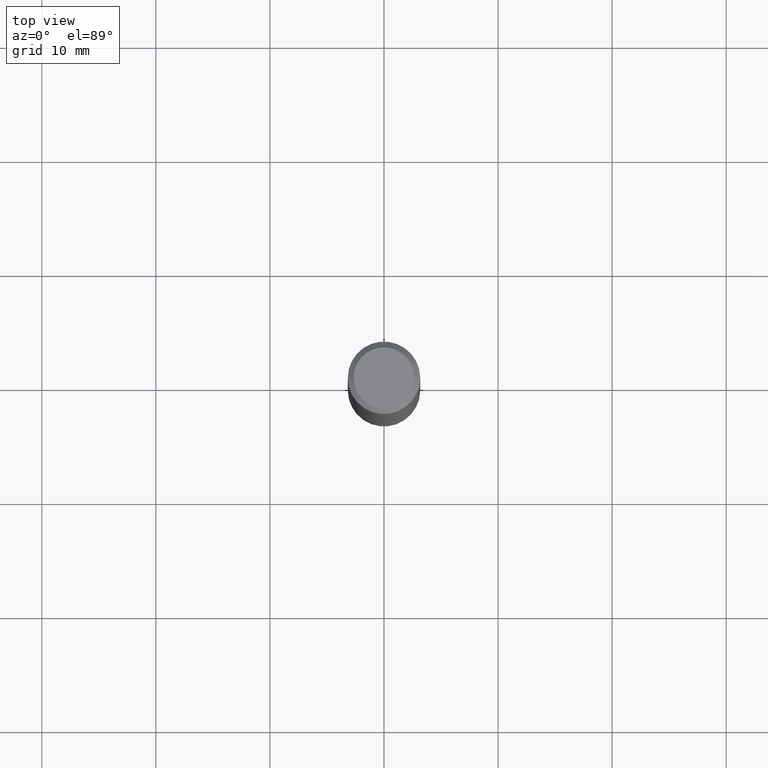
[diagram: clean part render]
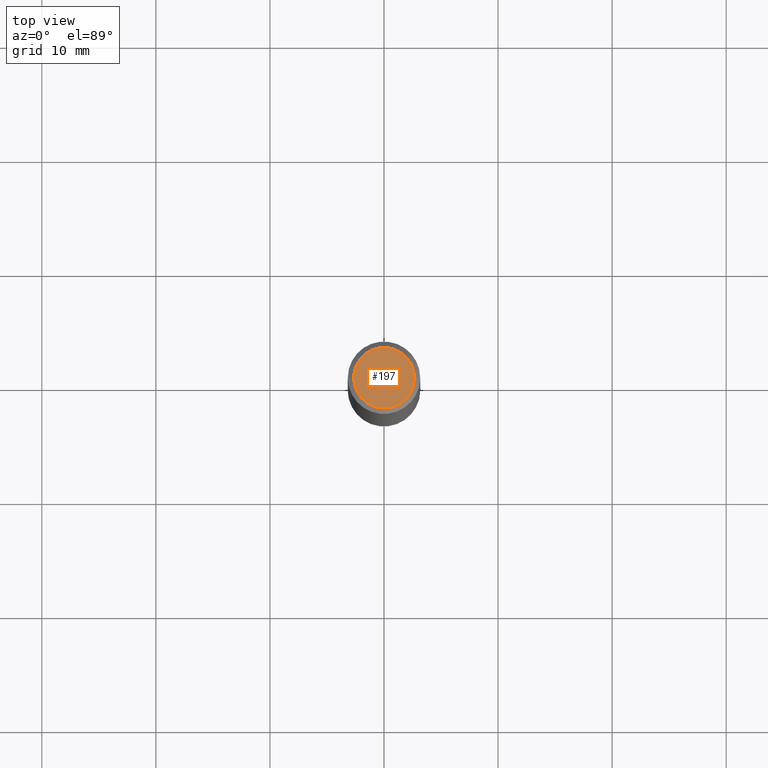
[diagram: same view with one face highlighted and labeled with its STEP entity id]
A machine part, top view. The second image highlights one B-rep face of the part: STEP entity #197.
In plain terms, the highlighted planar face has unit normal (0, -0, -1).
Its self-contained STEP definition (entity closure, byte-faithful):
#6 = AXIS2_PLACEMENT_3D ( 'NONE', #333, #399, #408 ) ;
#26 = DIRECTION ( 'NONE',  ( 1.000000000000000000, -6.982962677686267499E-15, 4.874400871621268483E-29 ) ) ;
#27 = EDGE_LOOP ( 'NONE', ( #274, #289 ) ) ;
#34 = AXIS2_PLACEMENT_3D ( 'NONE', #50, #37, #432 ) ;
#37 = DIRECTION ( 'NONE',  ( 2.438088387897960049E-29, -3.491481338843145188E-15, -1.000000000000000000 ) ) ;
#50 = CARTESIAN_POINT ( 'NONE',  ( 7.332110811570533898E-16, 0.1049999999999993577, -3.879481030290301102E-16 ) ) ;
#56 = FACE_OUTER_BOUND ( 'NONE', #27, .T. ) ;
#71 = CARTESIAN_POINT ( 'NONE',  ( -0.1049999999999993577, 7.681258945454844472E-16, -4.268512490100935748E-17 ) ) ;
#163 = EDGE_CURVE ( 'NONE', #291, #217, #249, .T. ) ;
#197 = ADVANCED_FACE ( 'NONE', ( #56 ), #284, .F. ) ;
#217 = VERTEX_POINT ( 'NONE', #71 ) ;
#226 = CIRCLE ( 'NONE', #6, 0.1049999999999993577 ) ;
#227 = CARTESIAN_POINT ( 'NONE',  ( 0.1049999999999993577, -8.238720831321533257E-16, -4.268512490099867088E-17 ) ) ;
#249 = CIRCLE ( 'NONE', #359, 0.1049999999999993577 ) ;
#262 = CARTESIAN_POINT ( 'NONE',  ( 1.043851414335219781E-45, -1.490343170380447145E-31, -4.268512490100411279E-17 ) ) ;
#274 = ORIENTED_EDGE ( 'NONE', *, *, #367, .T. ) ;
#284 = PLANE ( 'NONE',  #34 ) ;
#289 = ORIENTED_EDGE ( 'NONE', *, *, #163, .T. ) ;
#291 = VERTEX_POINT ( 'NONE', #227 ) ;
#333 = CARTESIAN_POINT ( 'NONE',  ( 1.043851414335219781E-45, -1.490343170380447145E-31, -4.268512490100411279E-17 ) ) ;
#359 = AXIS2_PLACEMENT_3D ( 'NONE', #262, #435, #26 ) ;
#367 = EDGE_CURVE ( 'NONE', #217, #291, #226, .T. ) ;
#399 = DIRECTION ( 'NONE',  ( -2.445468806185136597E-29, 3.491481338843145583E-15, 1.000000000000000000 ) ) ;
#408 = DIRECTION ( 'NONE',  ( 1.000000000000000000, -6.982962677686267499E-15, 4.874400871621268483E-29 ) ) ;
#432 = DIRECTION ( 'NONE',  ( -1.000000000000000000, 6.982962677686265922E-15, -4.876176775795935793E-29 ) ) ;
#435 = DIRECTION ( 'NONE',  ( -2.445468806185136597E-29, 3.491481338843145583E-15, 1.000000000000000000 ) ) ;